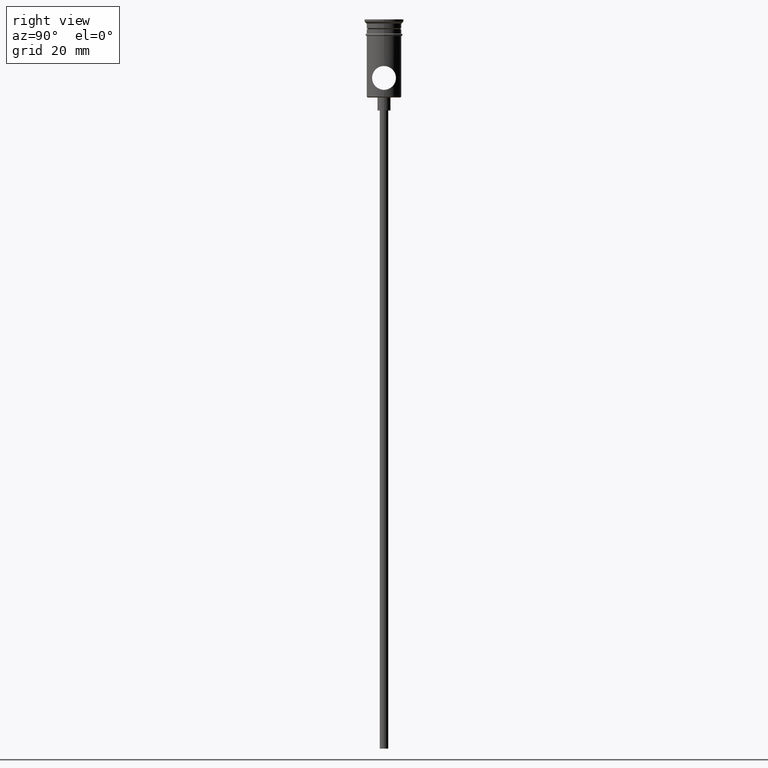
[diagram: clean part render]
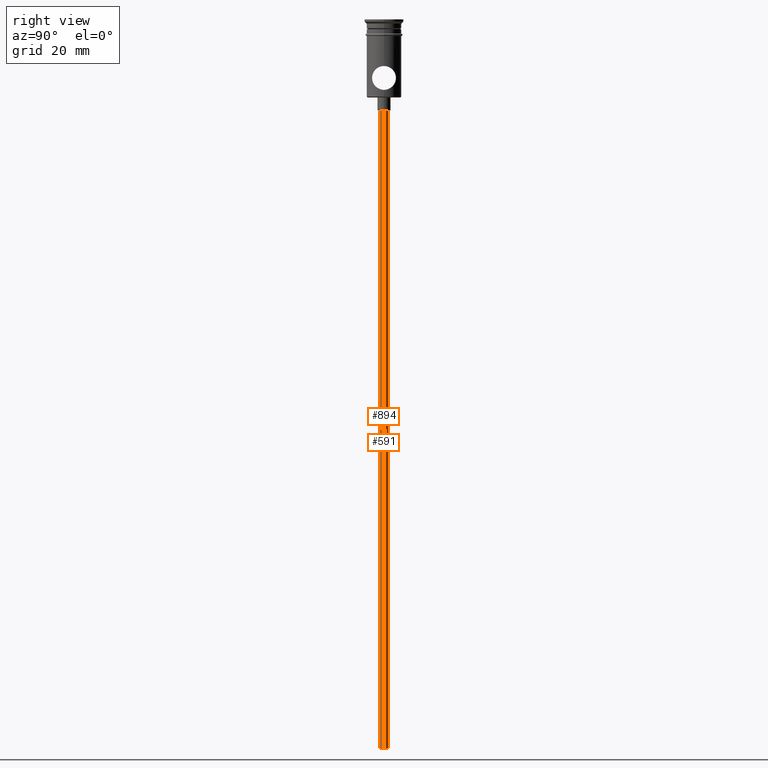
[diagram: same view with one multi-face feature highlighted, each face labeled with its STEP entity id]
A machine part, right view. The highlighted faces form ONE feature: a constant-radius fillet chain: 2 tangent blend faces with common blend radius 1 mm. The faces share edges in the B-rep.
Their STEP definitions:
[1] entity #894 (Cylinder):
#20 = AXIS2_PLACEMENT_3D ( 'NONE', #387, #400, #1243 ) ;
#59 = DIRECTION ( 'NONE',  ( 0.000000000000000000, 0.000000000000000000, -1.000000000000000000 ) ) ;
#70 = CIRCLE ( 'NONE', #323, 0.9999999999999997780 ) ;
#81 = EDGE_CURVE ( 'NONE', #414, #202, #794, .T. ) ;
#110 = VERTEX_POINT ( 'NONE', #1241 ) ;
#150 = EDGE_CURVE ( 'NONE', #414, #110, #827, .T. ) ;
#179 = FACE_OUTER_BOUND ( 'NONE', #335, .T. ) ;
#202 = VERTEX_POINT ( 'NONE', #943 ) ;
#248 = VECTOR ( 'NONE', #477, 1000.000000000000000 ) ;
#323 = AXIS2_PLACEMENT_3D ( 'NONE', #882, #1321, #1169 ) ;
#335 = EDGE_LOOP ( 'NONE', ( #736, #465, #1096, #1149 ) ) ;
#387 = CARTESIAN_POINT ( 'NONE',  ( 0.000000000000000000, 0.000000000000000000, -167.9999999999999716 ) ) ;
#394 = CARTESIAN_POINT ( 'NONE',  ( -0.9999999999999997780, 1.224646799147352961E-16, -167.9999999999999716 ) ) ;
#400 = DIRECTION ( 'NONE',  ( -0.000000000000000000, -0.000000000000000000, 1.000000000000000000 ) ) ;
#414 = VERTEX_POINT ( 'NONE', #1216 ) ;
#465 = ORIENTED_EDGE ( 'NONE', *, *, #150, .F. ) ;
#477 = DIRECTION ( 'NONE',  ( -0.000000000000000000, -0.000000000000000000, 1.000000000000000000 ) ) ;
#524 = CARTESIAN_POINT ( 'NONE',  ( -0.9999999999999997780, 1.224646799147352961E-16, -20.99999999999999645 ) ) ;
#614 = CYLINDRICAL_SURFACE ( 'NONE', #20, 0.9999999999999997780 ) ;
#618 = CARTESIAN_POINT ( 'NONE',  ( 0.000000000000000000, 0.000000000000000000, -167.9999999999999716 ) ) ;
#624 = DIRECTION ( 'NONE',  ( -1.000000000000000000, 0.000000000000000000, 0.000000000000000000 ) ) ;
#736 = ORIENTED_EDGE ( 'NONE', *, *, #856, .F. ) ;
#794 = LINE ( 'NONE', #1225, #248 ) ;
#827 = CIRCLE ( 'NONE', #1297, 0.9999999999999997780 ) ;
#856 = EDGE_CURVE ( 'NONE', #110, #989, #1033, .T. ) ;
#870 = VECTOR ( 'NONE', #1259, 1000.000000000000000 ) ;
#882 = CARTESIAN_POINT ( 'NONE',  ( 0.000000000000000000, 0.000000000000000000, -20.99999999999999645 ) ) ;
#894 = ADVANCED_FACE ( 'NONE', ( #179 ), #614, .T. ) ;
#934 = EDGE_CURVE ( 'NONE', #202, #989, #70, .T. ) ;
#943 = CARTESIAN_POINT ( 'NONE',  ( 0.9999999999999997780, 0.000000000000000000, -20.99999999999999645 ) ) ;
#989 = VERTEX_POINT ( 'NONE', #524 ) ;
#1033 = LINE ( 'NONE', #394, #870 ) ;
#1096 = ORIENTED_EDGE ( 'NONE', *, *, #81, .T. ) ;
#1149 = ORIENTED_EDGE ( 'NONE', *, *, #934, .T. ) ;
#1169 = DIRECTION ( 'NONE',  ( -1.000000000000000000, 0.000000000000000000, 0.000000000000000000 ) ) ;
#1216 = CARTESIAN_POINT ( 'NONE',  ( 0.9999999999999997780, 0.000000000000000000, -167.9999999999999716 ) ) ;
#1225 = CARTESIAN_POINT ( 'NONE',  ( 0.9999999999999997780, 0.000000000000000000, -167.9999999999999716 ) ) ;
#1241 = CARTESIAN_POINT ( 'NONE',  ( -0.9999999999999997780, 1.224646799147352961E-16, -167.9999999999999716 ) ) ;
#1243 = DIRECTION ( 'NONE',  ( 1.000000000000000000, 0.000000000000000000, 0.000000000000000000 ) ) ;
#1259 = DIRECTION ( 'NONE',  ( -0.000000000000000000, -0.000000000000000000, 1.000000000000000000 ) ) ;
#1297 = AXIS2_PLACEMENT_3D ( 'NONE', #618, #59, #624 ) ;
#1321 = DIRECTION ( 'NONE',  ( 0.000000000000000000, 0.000000000000000000, -1.000000000000000000 ) ) ;
[2] entity #591 (Cylinder):
#45 = AXIS2_PLACEMENT_3D ( 'NONE', #1313, #742, #83 ) ;
#81 = EDGE_CURVE ( 'NONE', #414, #202, #794, .T. ) ;
#83 = DIRECTION ( 'NONE',  ( -1.000000000000000000, 0.000000000000000000, 0.000000000000000000 ) ) ;
#108 = ORIENTED_EDGE ( 'NONE', *, *, #667, .T. ) ;
#110 = VERTEX_POINT ( 'NONE', #1241 ) ;
#147 = EDGE_CURVE ( 'NONE', #110, #414, #635, .T. ) ;
#170 = DIRECTION ( 'NONE',  ( 1.000000000000000000, 0.000000000000000000, 0.000000000000000000 ) ) ;
#177 = DIRECTION ( 'NONE',  ( 0.000000000000000000, 0.000000000000000000, -1.000000000000000000 ) ) ;
#202 = VERTEX_POINT ( 'NONE', #943 ) ;
#248 = VECTOR ( 'NONE', #477, 1000.000000000000000 ) ;
#394 = CARTESIAN_POINT ( 'NONE',  ( -0.9999999999999997780, 1.224646799147352961E-16, -167.9999999999999716 ) ) ;
#397 = CARTESIAN_POINT ( 'NONE',  ( 0.000000000000000000, 0.000000000000000000, -167.9999999999999716 ) ) ;
#414 = VERTEX_POINT ( 'NONE', #1216 ) ;
#445 = EDGE_LOOP ( 'NONE', ( #1380, #549, #108, #766 ) ) ;
#477 = DIRECTION ( 'NONE',  ( -0.000000000000000000, -0.000000000000000000, 1.000000000000000000 ) ) ;
#524 = CARTESIAN_POINT ( 'NONE',  ( -0.9999999999999997780, 1.224646799147352961E-16, -20.99999999999999645 ) ) ;
#549 = ORIENTED_EDGE ( 'NONE', *, *, #856, .T. ) ;
#591 = ADVANCED_FACE ( 'NONE', ( #702 ), #1251, .T. ) ;
#635 = CIRCLE ( 'NONE', #1411, 0.9999999999999997780 ) ;
#657 = CIRCLE ( 'NONE', #45, 0.9999999999999997780 ) ;
#667 = EDGE_CURVE ( 'NONE', #989, #202, #657, .T. ) ;
#702 = FACE_OUTER_BOUND ( 'NONE', #445, .T. ) ;
#719 = DIRECTION ( 'NONE',  ( -0.000000000000000000, -0.000000000000000000, 1.000000000000000000 ) ) ;
#730 = AXIS2_PLACEMENT_3D ( 'NONE', #1150, #719, #170 ) ;
#742 = DIRECTION ( 'NONE',  ( 0.000000000000000000, 0.000000000000000000, -1.000000000000000000 ) ) ;
#766 = ORIENTED_EDGE ( 'NONE', *, *, #81, .F. ) ;
#794 = LINE ( 'NONE', #1225, #248 ) ;
#856 = EDGE_CURVE ( 'NONE', #110, #989, #1033, .T. ) ;
#870 = VECTOR ( 'NONE', #1259, 1000.000000000000000 ) ;
#943 = CARTESIAN_POINT ( 'NONE',  ( 0.9999999999999997780, 0.000000000000000000, -20.99999999999999645 ) ) ;
#989 = VERTEX_POINT ( 'NONE', #524 ) ;
#1033 = LINE ( 'NONE', #394, #870 ) ;
#1041 = DIRECTION ( 'NONE',  ( -1.000000000000000000, 0.000000000000000000, 0.000000000000000000 ) ) ;
#1150 = CARTESIAN_POINT ( 'NONE',  ( 0.000000000000000000, 0.000000000000000000, -167.9999999999999716 ) ) ;
#1216 = CARTESIAN_POINT ( 'NONE',  ( 0.9999999999999997780, 0.000000000000000000, -167.9999999999999716 ) ) ;
#1225 = CARTESIAN_POINT ( 'NONE',  ( 0.9999999999999997780, 0.000000000000000000, -167.9999999999999716 ) ) ;
#1241 = CARTESIAN_POINT ( 'NONE',  ( -0.9999999999999997780, 1.224646799147352961E-16, -167.9999999999999716 ) ) ;
#1251 = CYLINDRICAL_SURFACE ( 'NONE', #730, 0.9999999999999997780 ) ;
#1259 = DIRECTION ( 'NONE',  ( -0.000000000000000000, -0.000000000000000000, 1.000000000000000000 ) ) ;
#1313 = CARTESIAN_POINT ( 'NONE',  ( 0.000000000000000000, 0.000000000000000000, -20.99999999999999645 ) ) ;
#1380 = ORIENTED_EDGE ( 'NONE', *, *, #147, .F. ) ;
#1411 = AXIS2_PLACEMENT_3D ( 'NONE', #397, #177, #1041 ) ;